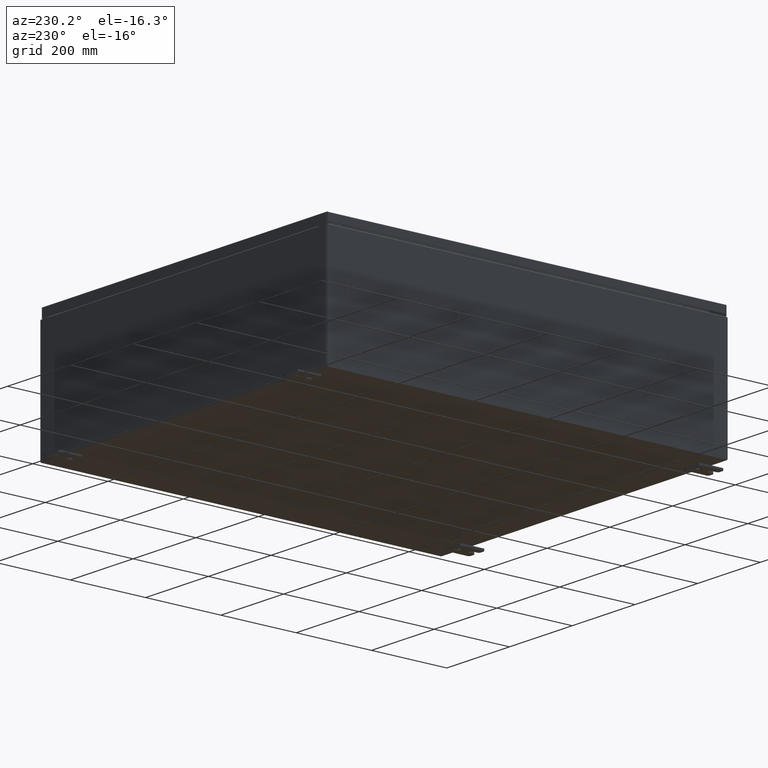
[diagram: clean part render]
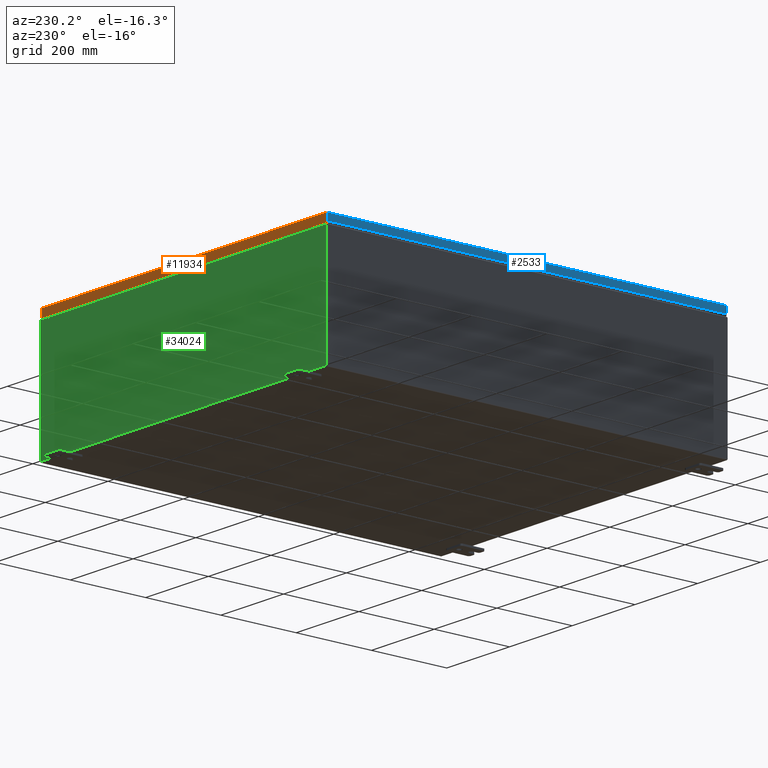
[diagram: same view with three faces highlighted in distinct colors, each labeled with its STEP entity id]
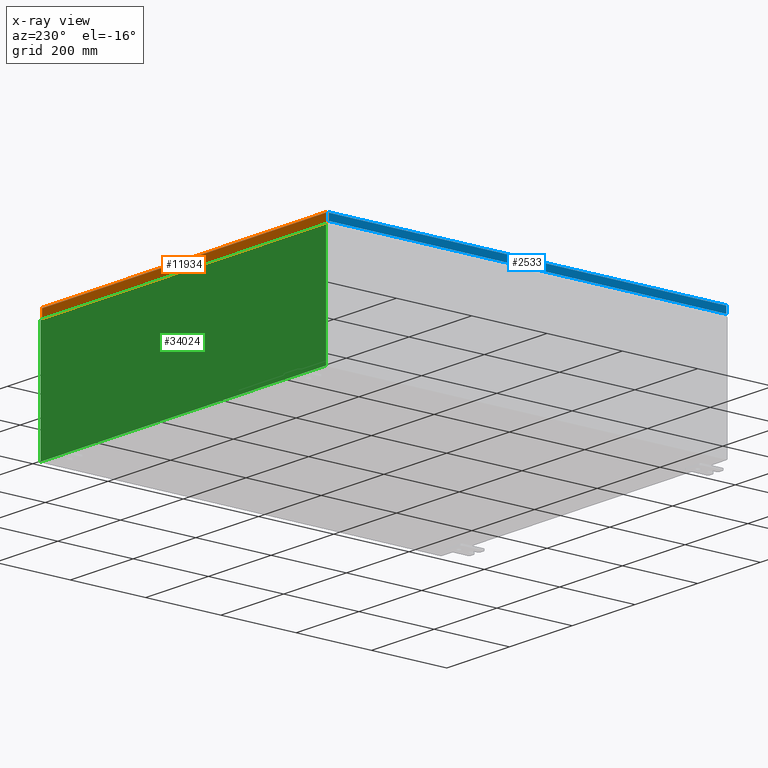
[diagram: x-ray of the same camera — body ghosted, the three highlighted faces saturated]
A machine part, auxiliary view with three faces highlighted in distinct colors.
The next image is the same camera in x-ray (body ghosted, the three faces saturated) — at least one of them is partly hidden behind the body in this view.
Their STEP definitions:

[orange] entity #11934 — the highlighted planar face has unit normal (0, -1, -0).
#702 = LINE ( 'NONE', #45533, #53825 ) ;
#908 = LINE ( 'NONE', #11169, #66503 ) ;
#2652 = VERTEX_POINT ( 'NONE', #60478 ) ;
#4083 = CARTESIAN_POINT ( 'NONE',  ( 17.84865786437626400, 20.93750000000000000, 1.063058979987141900E-013 ) ) ;
#5389 = VERTEX_POINT ( 'NONE', #67740 ) ;
#5840 = DIRECTION ( 'NONE',  ( 1.000000000000000000, 1.751623080406021300E-046, 1.218385167906012900E-016 ) ) ;
#6511 = EDGE_CURVE ( 'NONE', #64743, #5389, #702, .T. ) ;
#9739 = EDGE_CURVE ( 'NONE', #5389, #2652, #22113, .T. ) ;
#11169 = CARTESIAN_POINT ( 'NONE',  ( -17.93750000000000000, 20.93750000000000700, -0.9377000000000042000 ) ) ;
#11934 = ADVANCED_FACE ( 'NONE', ( #40154 ), #23751, .F. ) ;
#16011 = VERTEX_POINT ( 'NONE', #25619 ) ;
#18441 = CARTESIAN_POINT ( 'NONE',  ( -1.292037578924910300E-029, 20.93750000000000000, 1.063058979987141900E-013 ) ) ;
#18841 = AXIS2_PLACEMENT_3D ( 'NONE', #18441, #66297, #34383 ) ;
#21375 = DIRECTION ( 'NONE',  ( -0.0000000000000000000, 5.064839849203706200E-015, -1.000000000000000000 ) ) ;
#22113 = LINE ( 'NONE', #47853, #62855 ) ;
#23751 = PLANE ( 'NONE',  #18841 ) ;
#25619 = CARTESIAN_POINT ( 'NONE',  ( 17.84865786437626800, 20.93750000000000700, -0.9376999999999997600 ) ) ;
#31208 = CARTESIAN_POINT ( 'NONE',  ( 17.84865786437626800, 20.93750000000000000, -0.08769999999999550400 ) ) ;
#34383 = DIRECTION ( 'NONE',  ( 0.0000000000000000000, 5.064839849203706200E-015, -1.000000000000000000 ) ) ;
#40154 = FACE_OUTER_BOUND ( 'NONE', #54422, .T. ) ;
#41622 = ORIENTED_EDGE ( 'NONE', *, *, #6511, .F. ) ;
#45533 = CARTESIAN_POINT ( 'NONE',  ( -17.93750000000000000, 20.93750000000000000, -0.08769999999999550400 ) ) ;
#46979 = LINE ( 'NONE', #4083, #58083 ) ;
#47737 = EDGE_CURVE ( 'NONE', #2652, #16011, #908, .T. ) ;
#47853 = CARTESIAN_POINT ( 'NONE',  ( -17.84865786437626800, 20.93750000000000000, -0.07469999999999962800 ) ) ;
#47937 = DIRECTION ( 'NONE',  ( 0.0000000000000000000, 5.064839849203706200E-015, -1.000000000000000000 ) ) ;
#48975 = EDGE_CURVE ( 'NONE', #64743, #16011, #46979, .T. ) ;
#52209 = ORIENTED_EDGE ( 'NONE', *, *, #47737, .F. ) ;
#53001 = ORIENTED_EDGE ( 'NONE', *, *, #9739, .F. ) ;
#53825 = VECTOR ( 'NONE', #61375, 39.37007874015748100 ) ;
#54422 = EDGE_LOOP ( 'NONE', ( #41622, #61928, #52209, #53001 ) ) ;
#58083 = VECTOR ( 'NONE', #47937, 39.37007874015748100 ) ;
#60478 = CARTESIAN_POINT ( 'NONE',  ( -17.84865786437626800, 20.93750000000000700, -0.9377000000000042000 ) ) ;
#61375 = DIRECTION ( 'NONE',  ( -1.000000000000000000, -6.170925750089125200E-031, -3.189293793798670500E-045 ) ) ;
#61928 = ORIENTED_EDGE ( 'NONE', *, *, #48975, .T. ) ;
#62855 = VECTOR ( 'NONE', #21375, 39.37007874015748100 ) ;
#64743 = VERTEX_POINT ( 'NONE', #31208 ) ;
#66297 = DIRECTION ( 'NONE',  ( 6.170925750089124300E-031, -1.000000000000000000, -5.064839849203706200E-015 ) ) ;
#66503 = VECTOR ( 'NONE', #5840, 39.37007874015748100 ) ;
#67740 = CARTESIAN_POINT ( 'NONE',  ( -17.84865786437627100, 20.93750000000000000, -0.08769999999999550400 ) ) ;

[blue] entity #2533 — the highlighted planar face has unit normal (1, -0, -0).
#2533 = ADVANCED_FACE ( 'NONE', ( #59081 ), #54076, .F. ) ;
#4206 = ORIENTED_EDGE ( 'NONE', *, *, #29360, .F. ) ;
#8818 = LINE ( 'NONE', #18776, #24549 ) ;
#9216 = CARTESIAN_POINT ( 'NONE',  ( -17.93750000000000000, 20.84865786437627100, 2.002707847051506500E-013 ) ) ;
#10149 = EDGE_CURVE ( 'NONE', #42482, #23664, #8818, .T. ) ;
#13657 = CARTESIAN_POINT ( 'NONE',  ( -17.93750000000000700, -20.84865786437626800, -0.7949999999999996000 ) ) ;
#16920 = CARTESIAN_POINT ( 'NONE',  ( -17.93750000000000000, 1.872335221926305700E-015, 5.468538495836085700E-014 ) ) ;
#18776 = CARTESIAN_POINT ( 'NONE',  ( -17.93750000000000700, -20.93750000000000000, -0.7949999999999997100 ) ) ;
#20810 = CARTESIAN_POINT ( 'NONE',  ( -17.93750000000000400, -20.84865786437627100, -0.07469999999999976700 ) ) ;
#21111 = VECTOR ( 'NONE', #66451, 39.37007874015748100 ) ;
#21198 = CARTESIAN_POINT ( 'NONE',  ( -17.93750000000000400, -20.84865786437626800, -0.08770000000000334500 ) ) ;
#23664 = VERTEX_POINT ( 'NONE', #65606 ) ;
#24549 = VECTOR ( 'NONE', #55905, 39.37007874015748100 ) ;
#25566 = EDGE_CURVE ( 'NONE', #61571, #23664, #64532, .T. ) ;
#26948 = AXIS2_PLACEMENT_3D ( 'NONE', #16920, #59410, #27551 ) ;
#27551 = DIRECTION ( 'NONE',  ( -3.034122441942816500E-015, 0.0000000000000000000, -1.000000000000000000 ) ) ;
#28805 = EDGE_LOOP ( 'NONE', ( #52710, #56135, #53698, #4206 ) ) ;
#29360 = EDGE_CURVE ( 'NONE', #43984, #42482, #52042, .T. ) ;
#31945 = EDGE_CURVE ( 'NONE', #61571, #43984, #63510, .T. ) ;
#34540 = CARTESIAN_POINT ( 'NONE',  ( -17.93750000000000400, -20.93750000000000000, -0.08770000000000004200 ) ) ;
#36175 = VECTOR ( 'NONE', #46316, 39.37007874015748100 ) ;
#42482 = VERTEX_POINT ( 'NONE', #13657 ) ;
#43984 = VERTEX_POINT ( 'NONE', #21198 ) ;
#46316 = DIRECTION ( 'NONE',  ( -3.034122441942816100E-015, 6.982962677686267500E-015, -1.000000000000000000 ) ) ;
#48454 = CARTESIAN_POINT ( 'NONE',  ( -17.93750000000000000, 20.84865786437626800, -0.08770000000000659200 ) ) ;
#52042 = LINE ( 'NONE', #20810, #66164 ) ;
#52636 = DIRECTION ( 'NONE',  ( -3.034122441942816100E-015, 6.982962677686267500E-015, -1.000000000000000000 ) ) ;
#52710 = ORIENTED_EDGE ( 'NONE', *, *, #31945, .F. ) ;
#53698 = ORIENTED_EDGE ( 'NONE', *, *, #10149, .F. ) ;
#54076 = PLANE ( 'NONE',  #26948 ) ;
#55905 = DIRECTION ( 'NONE',  ( 1.043810576683658800E-016, 1.000000000000000000, 1.239525059811844700E-016 ) ) ;
#56135 = ORIENTED_EDGE ( 'NONE', *, *, #25566, .T. ) ;
#59081 = FACE_OUTER_BOUND ( 'NONE', #28805, .T. ) ;
#59410 = DIRECTION ( 'NONE',  ( 1.000000000000000000, -1.043810576683654900E-016, -3.034122441942816500E-015 ) ) ;
#61571 = VERTEX_POINT ( 'NONE', #48454 ) ;
#63510 = LINE ( 'NONE', #34540, #21111 ) ;
#64532 = LINE ( 'NONE', #9216, #36175 ) ;
#65606 = CARTESIAN_POINT ( 'NONE',  ( -17.93750000000000000, 20.84865786437627800, -0.7949999999999944900 ) ) ;
#66164 = VECTOR ( 'NONE', #52636, 39.37007874015748100 ) ;
#66451 = DIRECTION ( 'NONE',  ( -1.043810576683650200E-016, -1.000000000000000000, 1.565715865025488000E-016 ) ) ;

[green] entity #34024 — the highlighted planar face has unit normal (0, -1, 0).
#33 = LINE ( 'NONE', #37660, #24865 ) ;
#418 = CARTESIAN_POINT ( 'NONE',  ( -17.92529999999999600, 0.0000000000000000000, -5.925300000000000000 ) ) ;
#1253 = LINE ( 'NONE', #22988, #57677 ) ;
#4602 = CARTESIAN_POINT ( 'NONE',  ( -16.88719999999998900, -0.0000000000000000000, 5.874949999999999200 ) ) ;
#4849 = DIRECTION ( 'NONE',  ( 0.0000000000000000000, 0.0000000000000000000, -1.000000000000000000 ) ) ;
#5298 = LINE ( 'NONE', #56884, #60102 ) ;
#5859 = VERTEX_POINT ( 'NONE', #24716 ) ;
#5969 = DIRECTION ( 'NONE',  ( 0.0000000000000000000, 0.0000000000000000000, 1.000000000000000000 ) ) ;
#6397 = DIRECTION ( 'NONE',  ( 1.000000000000000000, 0.0000000000000000000, 0.0000000000000000000 ) ) ;
#6989 = EDGE_CURVE ( 'NONE', #66281, #59455, #68797, .T. ) ;
#8182 = CARTESIAN_POINT ( 'NONE',  ( -17.92529999999999600, 0.0000000000000000000, 5.925299999999999100 ) ) ;
#9261 = CARTESIAN_POINT ( 'NONE',  ( 16.88720000000000000, 0.0000000000000000000, 5.912299999999999200 ) ) ;
#9729 = EDGE_CURVE ( 'NONE', #60275, #55733, #23744, .T. ) ;
#11020 = CARTESIAN_POINT ( 'NONE',  ( -17.92529999999999600, 0.0000000000000000000, 5.925299999999999100 ) ) ;
#12072 = ORIENTED_EDGE ( 'NONE', *, *, #9729, .F. ) ;
#12776 = VECTOR ( 'NONE', #4849, 39.37007874015748100 ) ;
#12960 = ORIENTED_EDGE ( 'NONE', *, *, #32721, .F. ) ;
#14546 = VERTEX_POINT ( 'NONE', #9261 ) ;
#15515 = EDGE_CURVE ( 'NONE', #62718, #66083, #55117, .T. ) ;
#15526 = AXIS2_PLACEMENT_3D ( 'NONE', #27886, #65100, #33205 ) ;
#16058 = VECTOR ( 'NONE', #6397, 39.37007874015748100 ) ;
#16341 = EDGE_CURVE ( 'NONE', #62718, #14546, #44232, .T. ) ;
#16354 = DIRECTION ( 'NONE',  ( 0.0000000000000000000, 0.0000000000000000000, -1.000000000000000000 ) ) ;
#16968 = DIRECTION ( 'NONE',  ( -0.0000000000000000000, 1.000000000000000000, -0.0000000000000000000 ) ) ;
#18190 = DIRECTION ( 'NONE',  ( 0.0000000000000000000, -0.0000000000000000000, -1.000000000000000000 ) ) ;
#19916 = VERTEX_POINT ( 'NONE', #66788 ) ;
#20542 = VECTOR ( 'NONE', #32350, 39.37007874015748100 ) ;
#22988 = CARTESIAN_POINT ( 'NONE',  ( -17.92529999999999600, 0.0000000000000000000, 5.925299999999999100 ) ) ;
#23514 = CARTESIAN_POINT ( 'NONE',  ( -17.92529999999999600, 0.0000000000000000000, 5.925299999999999100 ) ) ;
#23744 = LINE ( 'NONE', #26470, #50365 ) ;
#24445 = EDGE_LOOP ( 'NONE', ( #12072, #12960, #58338, #61295, #63436, #58575, #54823, #55141, #45980, #58236, #35042, #50277 ) ) ;
#24471 = VECTOR ( 'NONE', #16354, 39.37007874015748100 ) ;
#24716 = CARTESIAN_POINT ( 'NONE',  ( 17.92530000000000400, 0.0000000000000000000, -5.925300000000000000 ) ) ;
#24865 = VECTOR ( 'NONE', #5969, 39.37007874015748100 ) ;
#25002 = CARTESIAN_POINT ( 'NONE',  ( -17.92529999999999600, 0.0000000000000000000, -5.925300000000000000 ) ) ;
#26470 = CARTESIAN_POINT ( 'NONE',  ( -16.92454999999998900, -0.0000000000000000000, 0.0000000000000000000 ) ) ;
#26601 = VECTOR ( 'NONE', #45255, 39.37007874015748100 ) ;
#27018 = CARTESIAN_POINT ( 'NONE',  ( 16.92455000000000000, 0.0000000000000000000, 5.874949999999999200 ) ) ;
#27670 = CIRCLE ( 'NONE', #15526, 0.01867499999999949400 ) ;
#27783 = CARTESIAN_POINT ( 'NONE',  ( -16.92454999999998900, 0.0000000000000000000, 5.874949999999999200 ) ) ;
#27886 = CARTESIAN_POINT ( 'NONE',  ( -16.90587499999999100, 0.0000000000000000000, 5.874949999999999200 ) ) ;
#28396 = FACE_OUTER_BOUND ( 'NONE', #24445, .T. ) ;
#30988 = EDGE_CURVE ( 'NONE', #44068, #5859, #38552, .T. ) ;
#31723 = EDGE_CURVE ( 'NONE', #33629, #55733, #1253, .T. ) ;
#31762 = DIRECTION ( 'NONE',  ( 0.0000000000000000000, 0.0000000000000000000, 1.000000000000000000 ) ) ;
#32350 = DIRECTION ( 'NONE',  ( -1.000000000000000000, -0.0000000000000000000, -0.0000000000000000000 ) ) ;
#32721 = EDGE_CURVE ( 'NONE', #66083, #60275, #27670, .T. ) ;
#33205 = DIRECTION ( 'NONE',  ( 0.0000000000000000000, 0.0000000000000000000, -1.000000000000000000 ) ) ;
#33629 = VERTEX_POINT ( 'NONE', #23514 ) ;
#34024 = ADVANCED_FACE ( 'NONE', ( #28396 ), #39010, .F. ) ;
#34606 = LINE ( 'NONE', #418, #20542 ) ;
#35042 = ORIENTED_EDGE ( 'NONE', *, *, #47251, .T. ) ;
#36625 = CARTESIAN_POINT ( 'NONE',  ( -16.88719999999998900, 3.756290991288361700E-016, 5.912299999999999200 ) ) ;
#37660 = CARTESIAN_POINT ( 'NONE',  ( 16.88720000000000000, 0.0000000000000000000, 0.0000000000000000000 ) ) ;
#37715 = CARTESIAN_POINT ( 'NONE',  ( -16.92454999999998900, 0.0000000000000000000, 5.925299999999999100 ) ) ;
#38552 = LINE ( 'NONE', #53486, #24471 ) ;
#39010 = PLANE ( 'NONE',  #45761 ) ;
#43410 = CARTESIAN_POINT ( 'NONE',  ( 16.88720000000000000, 0.0000000000000000000, 5.874949999999999200 ) ) ;
#44068 = VERTEX_POINT ( 'NONE', #64174 ) ;
#44232 = LINE ( 'NONE', #59539, #16058 ) ;
#44613 = CARTESIAN_POINT ( 'NONE',  ( 0.0000000000000000000, 0.0000000000000000000, 0.0000000000000000000 ) ) ;
#45255 = DIRECTION ( 'NONE',  ( -0.0000000000000000000, -0.0000000000000000000, 1.000000000000000000 ) ) ;
#45761 = AXIS2_PLACEMENT_3D ( 'NONE', #44613, #50000, #18190 ) ;
#45980 = ORIENTED_EDGE ( 'NONE', *, *, #30988, .T. ) ;
#47251 = EDGE_CURVE ( 'NONE', #55397, #33629, #54871, .T. ) ;
#48778 = CARTESIAN_POINT ( 'NONE',  ( 16.90587500000000200, 0.0000000000000000000, 5.874949999999999200 ) ) ;
#50000 = DIRECTION ( 'NONE',  ( 0.0000000000000000000, -1.000000000000000000, 0.0000000000000000000 ) ) ;
#50277 = ORIENTED_EDGE ( 'NONE', *, *, #31723, .T. ) ;
#50365 = VECTOR ( 'NONE', #31762, 39.37007874015748100 ) ;
#53486 = CARTESIAN_POINT ( 'NONE',  ( 17.92530000000000400, 0.0000000000000000000, 5.925300000000000000 ) ) ;
#53713 = DIRECTION ( 'NONE',  ( 1.000000000000000000, 0.0000000000000000000, 3.048036009064577000E-017 ) ) ;
#54119 = DIRECTION ( 'NONE',  ( 0.0000000000000000000, 0.0000000000000000000, -1.000000000000000000 ) ) ;
#54823 = ORIENTED_EDGE ( 'NONE', *, *, #65177, .F. ) ;
#54871 = LINE ( 'NONE', #8182, #26601 ) ;
#55117 = LINE ( 'NONE', #68461, #12776 ) ;
#55135 = AXIS2_PLACEMENT_3D ( 'NONE', #48778, #16968, #54119 ) ;
#55141 = ORIENTED_EDGE ( 'NONE', *, *, #62011, .T. ) ;
#55397 = VERTEX_POINT ( 'NONE', #25002 ) ;
#55733 = VERTEX_POINT ( 'NONE', #37715 ) ;
#56884 = CARTESIAN_POINT ( 'NONE',  ( 16.92454999999949200, -0.0000000000000000000, -1.469244821010302200E-012 ) ) ;
#57677 = VECTOR ( 'NONE', #60178, 39.37007874015748100 ) ;
#57694 = EDGE_CURVE ( 'NONE', #59455, #14546, #33, .T. ) ;
#58236 = ORIENTED_EDGE ( 'NONE', *, *, #66269, .T. ) ;
#58338 = ORIENTED_EDGE ( 'NONE', *, *, #15515, .F. ) ;
#58575 = ORIENTED_EDGE ( 'NONE', *, *, #6989, .F. ) ;
#59455 = VERTEX_POINT ( 'NONE', #43410 ) ;
#59539 = CARTESIAN_POINT ( 'NONE',  ( -16.88719999999999600, 3.756290991288361700E-016, 5.912299999999999200 ) ) ;
#60102 = VECTOR ( 'NONE', #62276, 39.37007874015748100 ) ;
#60178 = DIRECTION ( 'NONE',  ( 1.000000000000000000, 0.0000000000000000000, 3.048036009064577000E-017 ) ) ;
#60275 = VERTEX_POINT ( 'NONE', #27783 ) ;
#61295 = ORIENTED_EDGE ( 'NONE', *, *, #16341, .T. ) ;
#62011 = EDGE_CURVE ( 'NONE', #19916, #44068, #62849, .T. ) ;
#62276 = DIRECTION ( 'NONE',  ( -8.681145560799821800E-014, 0.0000000000000000000, -1.000000000000000000 ) ) ;
#62718 = VERTEX_POINT ( 'NONE', #36625 ) ;
#62849 = LINE ( 'NONE', #11020, #64523 ) ;
#63436 = ORIENTED_EDGE ( 'NONE', *, *, #57694, .F. ) ;
#64174 = CARTESIAN_POINT ( 'NONE',  ( 17.92530000000000400, 0.0000000000000000000, 5.925300000000000000 ) ) ;
#64523 = VECTOR ( 'NONE', #53713, 39.37007874015748100 ) ;
#65100 = DIRECTION ( 'NONE',  ( -0.0000000000000000000, 1.000000000000000000, -0.0000000000000000000 ) ) ;
#65177 = EDGE_CURVE ( 'NONE', #19916, #66281, #5298, .T. ) ;
#66083 = VERTEX_POINT ( 'NONE', #4602 ) ;
#66269 = EDGE_CURVE ( 'NONE', #5859, #55397, #34606, .T. ) ;
#66281 = VERTEX_POINT ( 'NONE', #27018 ) ;
#66788 = CARTESIAN_POINT ( 'NONE',  ( 16.92455000000000400, 0.0000000000000000000, 5.925300000000000000 ) ) ;
#68461 = CARTESIAN_POINT ( 'NONE',  ( -16.88719999999998900, -0.0000000000000000000, 0.0000000000000000000 ) ) ;
#68797 = CIRCLE ( 'NONE', #55135, 0.01867499999999949400 ) ;